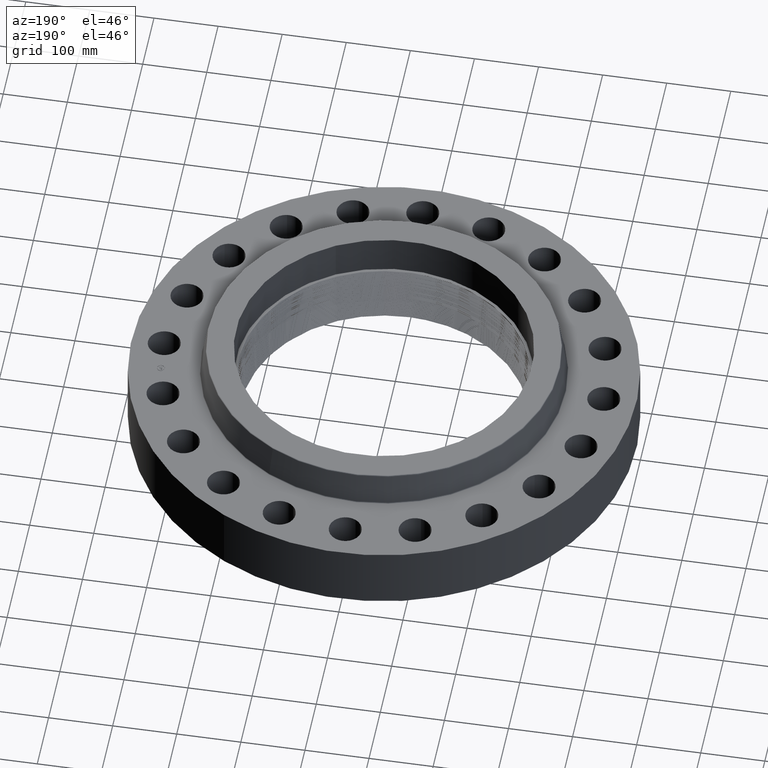
[diagram: clean part render]
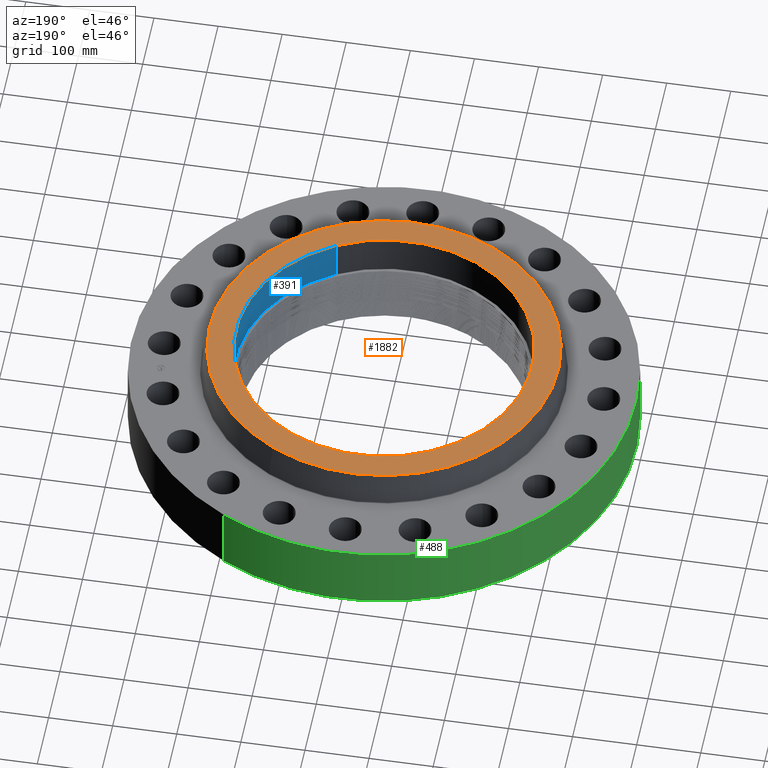
[diagram: same view with three faces highlighted in distinct colors, each labeled with its STEP entity id]
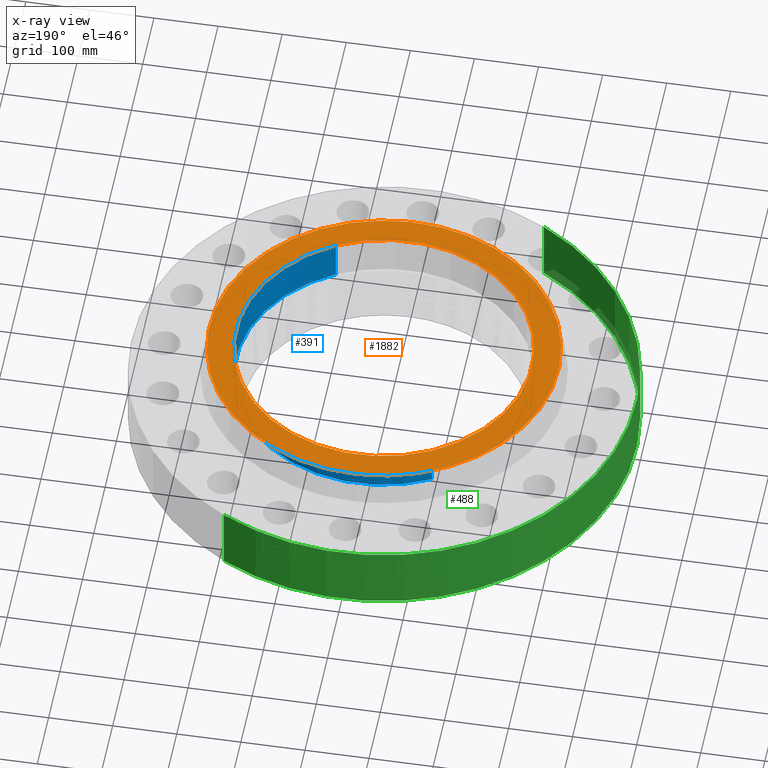
[diagram: x-ray of the same camera — body ghosted, the three highlighted faces saturated]
A machine part, auxiliary view with three faces highlighted in distinct colors.
The next image is the same camera in x-ray (body ghosted, the three faces saturated) — at least one of them is partly hidden behind the body in this view.
Their STEP definitions:

[orange] entity #1882 — the highlighted planar face has unit normal (0, 0, -1).
#356=AXIS2_PLACEMENT_3D('Circle Axis2P3D',#354,#355,$) ;
#382=AXIS2_PLACEMENT_3D('Circle Axis2P3D',#380,#381,$) ;
#620=AXIS2_PLACEMENT_3D('Circle Axis2P3D',#618,#619,$) ;
#639=AXIS2_PLACEMENT_3D('Circle Axis2P3D',#637,#638,$) ;
#1872=AXIS2_PLACEMENT_3D('Plane Axis2P3D',#1869,#1870,#1871) ;
#354=CARTESIAN_POINT('Axis2P3D Location',(0.,0.,6.00000000002)) ;
#358=CARTESIAN_POINT('Vertex',(4.36037527362,-7.98161340042,6.00000000002)) ;
#360=CARTESIAN_POINT('Vertex',(-4.36037527362,7.98161340042,6.00000000002)) ;
#380=CARTESIAN_POINT('Axis2P3D Location',(0.,0.,6.00000000002)) ;
#615=CARTESIAN_POINT('Vertex',(5.14040065404,9.40944028191,6.00000000002)) ;
#618=CARTESIAN_POINT('Axis2P3D Location',(0.,0.,6.00000000002)) ;
#622=CARTESIAN_POINT('Vertex',(-5.14040065404,-9.40944028191,6.00000000002)) ;
#637=CARTESIAN_POINT('Axis2P3D Location',(0.,0.,6.00000000002)) ;
#1869=CARTESIAN_POINT('Axis2P3D Location',(0.,10.7220000608,6.00000000002)) ;
#355=DIRECTION('Axis2P3D Direction',(0.,0.,0.0393700787402)) ;
#381=DIRECTION('Axis2P3D Direction',(0.,0.,0.0393700787402)) ;
#619=DIRECTION('Axis2P3D Direction',(0.,0.,-0.0393700787402)) ;
#638=DIRECTION('Axis2P3D Direction',(0.,0.,-0.0393700787402)) ;
#1870=DIRECTION('Axis2P3D Direction',(0.,0.,-0.0393700787402)) ;
#1871=DIRECTION('Axis2P3D XDirection',(0.0393700787402,0.,0.)) ;
#1875=ORIENTED_EDGE('',*,*,#624,.F.) ;
#1876=ORIENTED_EDGE('',*,*,#641,.F.) ;
#1879=ORIENTED_EDGE('',*,*,#384,.T.) ;
#1880=ORIENTED_EDGE('',*,*,#362,.T.) ;
#1881=FACE_BOUND('',#1878,.T.) ;
#1882=ADVANCED_FACE('PartBody',(#1877,#1881),#1873,.F.) ;
#357=CIRCLE('generated circle',#356,9.09500000004) ;
#383=CIRCLE('generated circle',#382,9.09500000004) ;
#621=CIRCLE('generated circle',#620,10.7220000608) ;
#640=CIRCLE('generated circle',#639,10.7220000608) ;
#362=EDGE_CURVE('',#359,#361,#357,.F.) ;
#384=EDGE_CURVE('',#361,#359,#383,.F.) ;
#624=EDGE_CURVE('',#616,#623,#621,.T.) ;
#641=EDGE_CURVE('',#623,#616,#640,.T.) ;
#1874=EDGE_LOOP('',(#1875,#1876)) ;
#1878=EDGE_LOOP('',(#1879,#1880)) ;
#1877=FACE_OUTER_BOUND('',#1874,.T.) ;
#1873=PLANE('',#1872) ;
#359=VERTEX_POINT('',#358) ;
#361=VERTEX_POINT('',#360) ;
#616=VERTEX_POINT('',#615) ;
#623=VERTEX_POINT('',#622) ;

[blue] entity #391 — the highlighted cylindrical surface (partial cylindrical patch) has radius 231.013 mm, axis along (0, 0, 1).
#51=AXIS2_PLACEMENT_3D('Circle Axis2P3D',#49,#50,$) ;
#352=AXIS2_PLACEMENT_3D('Cylinder Axis2P3D',#349,#350,#351) ;
#382=AXIS2_PLACEMENT_3D('Circle Axis2P3D',#380,#381,$) ;
#44=CARTESIAN_POINT('Vertex',(-4.36037527362,7.98161340042,3.50000000001)) ;
#46=CARTESIAN_POINT('Vertex',(4.36037527362,-7.98161340042,3.50000000001)) ;
#49=CARTESIAN_POINT('Axis2P3D Location',(0.,0.,3.50000000001)) ;
#349=CARTESIAN_POINT('Axis2P3D Location',(0.,0.,3.50000000001)) ;
#358=CARTESIAN_POINT('Vertex',(4.36037527362,-7.98161340042,6.00000000002)) ;
#360=CARTESIAN_POINT('Vertex',(-4.36037527362,7.98161340042,6.00000000002)) ;
#363=CARTESIAN_POINT('Line Origine',(4.36037527362,-7.98161340042,4.75000000002)) ;
#368=CARTESIAN_POINT('Line Origine',(-4.36037527362,7.98161340042,4.75000000002)) ;
#380=CARTESIAN_POINT('Axis2P3D Location',(0.,0.,6.00000000002)) ;
#50=DIRECTION('Axis2P3D Direction',(0.,0.,-0.0393700787402)) ;
#350=DIRECTION('Axis2P3D Direction',(0.,0.,0.0393700787402)) ;
#351=DIRECTION('Axis2P3D XDirection',(0.0188750212049,-0.0345504945626,0.)) ;
#364=DIRECTION('Vector Direction',(0.,0.,0.0393700787402)) ;
#369=DIRECTION('Vector Direction',(0.,0.,0.0393700787402)) ;
#381=DIRECTION('Axis2P3D Direction',(0.,0.,0.0393700787402)) ;
#365=VECTOR('Line Direction',#364,0.0393700787402) ;
#370=VECTOR('Line Direction',#369,0.0393700787402) ;
#386=ORIENTED_EDGE('',*,*,#384,.F.) ;
#387=ORIENTED_EDGE('',*,*,#372,.F.) ;
#388=ORIENTED_EDGE('',*,*,#53,.F.) ;
#389=ORIENTED_EDGE('',*,*,#367,.T.) ;
#391=ADVANCED_FACE('PartBody',(#390),#353,.F.) ;
#52=CIRCLE('generated circle',#51,9.09500000004) ;
#383=CIRCLE('generated circle',#382,9.09500000004) ;
#353=CYLINDRICAL_SURFACE('generated cylinder',#352,9.09500000004) ;
#53=EDGE_CURVE('',#47,#45,#52,.F.) ;
#367=EDGE_CURVE('',#47,#359,#366,.T.) ;
#372=EDGE_CURVE('',#45,#361,#371,.T.) ;
#384=EDGE_CURVE('',#361,#359,#383,.F.) ;
#385=EDGE_LOOP('',(#386,#387,#388,#389)) ;
#390=FACE_OUTER_BOUND('',#385,.T.) ;
#366=LINE('Line',#363,#365) ;
#371=LINE('Line',#368,#370) ;
#45=VERTEX_POINT('',#44) ;
#47=VERTEX_POINT('',#46) ;
#359=VERTEX_POINT('',#358) ;
#361=VERTEX_POINT('',#360) ;

[green] entity #488 — the highlighted cylindrical surface (partial cylindrical patch) has radius 393.7 mm, axis along (0, 0, -1).
#452=AXIS2_PLACEMENT_3D('Cylinder Axis2P3D',#449,#450,#451) ;
#456=AXIS2_PLACEMENT_3D('Circle Axis2P3D',#454,#455,$) ;
#472=AXIS2_PLACEMENT_3D('Circle Axis2P3D',#470,#471,$) ;
#449=CARTESIAN_POINT('Axis2P3D Location',(0.,0.,2.87500000001)) ;
#454=CARTESIAN_POINT('Axis2P3D Location',(0.,0.,1.67844740731E-015)) ;
#458=CARTESIAN_POINT('Vertex',(-7.43109584839,-13.6025297094,1.67844740731E-015)) ;
#460=CARTESIAN_POINT('Vertex',(7.43109584839,13.6025297094,1.67844740731E-015)) ;
#463=CARTESIAN_POINT('Line Origine',(-7.43109584839,-13.6025297094,2.00000000001)) ;
#467=CARTESIAN_POINT('Vertex',(-7.43109584839,-13.6025297094,4.00000000002)) ;
#470=CARTESIAN_POINT('Axis2P3D Location',(0.,0.,4.00000000002)) ;
#474=CARTESIAN_POINT('Vertex',(7.43109584839,13.6025297094,4.00000000002)) ;
#477=CARTESIAN_POINT('Line Origine',(7.43109584839,13.6025297094,2.00000000001)) ;
#450=DIRECTION('Axis2P3D Direction',(0.,0.,-0.0393700787402)) ;
#451=DIRECTION('Axis2P3D XDirection',(0.0188750212049,0.0345504945626,0.)) ;
#455=DIRECTION('Axis2P3D Direction',(0.,0.,-0.0393700787402)) ;
#464=DIRECTION('Vector Direction',(0.,0.,-0.0393700787402)) ;
#471=DIRECTION('Axis2P3D Direction',(0.,0.,-0.0393700787402)) ;
#478=DIRECTION('Vector Direction',(0.,0.,-0.0393700787402)) ;
#465=VECTOR('Line Direction',#464,0.0393700787402) ;
#479=VECTOR('Line Direction',#478,0.0393700787402) ;
#483=ORIENTED_EDGE('',*,*,#462,.F.) ;
#484=ORIENTED_EDGE('',*,*,#469,.T.) ;
#485=ORIENTED_EDGE('',*,*,#476,.T.) ;
#486=ORIENTED_EDGE('',*,*,#481,.F.) ;
#488=ADVANCED_FACE('PartBody',(#487),#453,.T.) ;
#457=CIRCLE('generated circle',#456,15.5000000001) ;
#473=CIRCLE('generated circle',#472,15.5000000001) ;
#453=CYLINDRICAL_SURFACE('generated cylinder',#452,15.5000000001) ;
#462=EDGE_CURVE('',#459,#461,#457,.T.) ;
#469=EDGE_CURVE('',#459,#468,#466,.F.) ;
#476=EDGE_CURVE('',#468,#475,#473,.T.) ;
#481=EDGE_CURVE('',#461,#475,#480,.F.) ;
#482=EDGE_LOOP('',(#483,#484,#485,#486)) ;
#487=FACE_OUTER_BOUND('',#482,.T.) ;
#466=LINE('Line',#463,#465) ;
#480=LINE('Line',#477,#479) ;
#459=VERTEX_POINT('',#458) ;
#461=VERTEX_POINT('',#460) ;
#468=VERTEX_POINT('',#467) ;
#475=VERTEX_POINT('',#474) ;